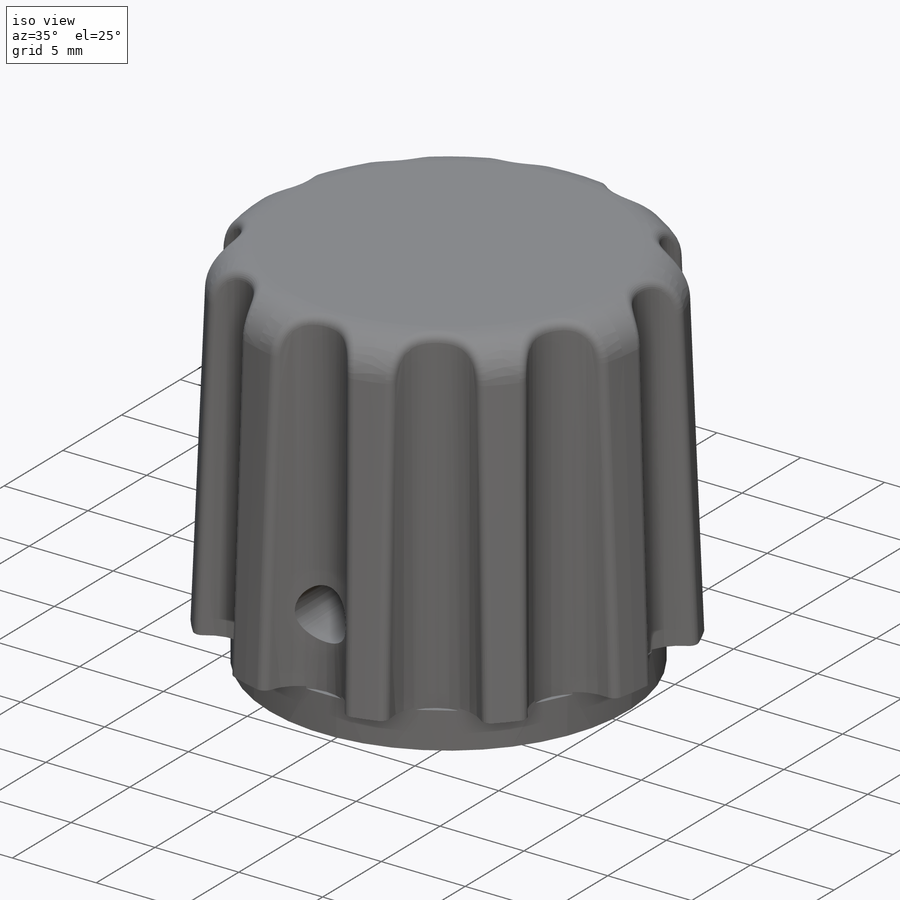
[diagram: iso view]
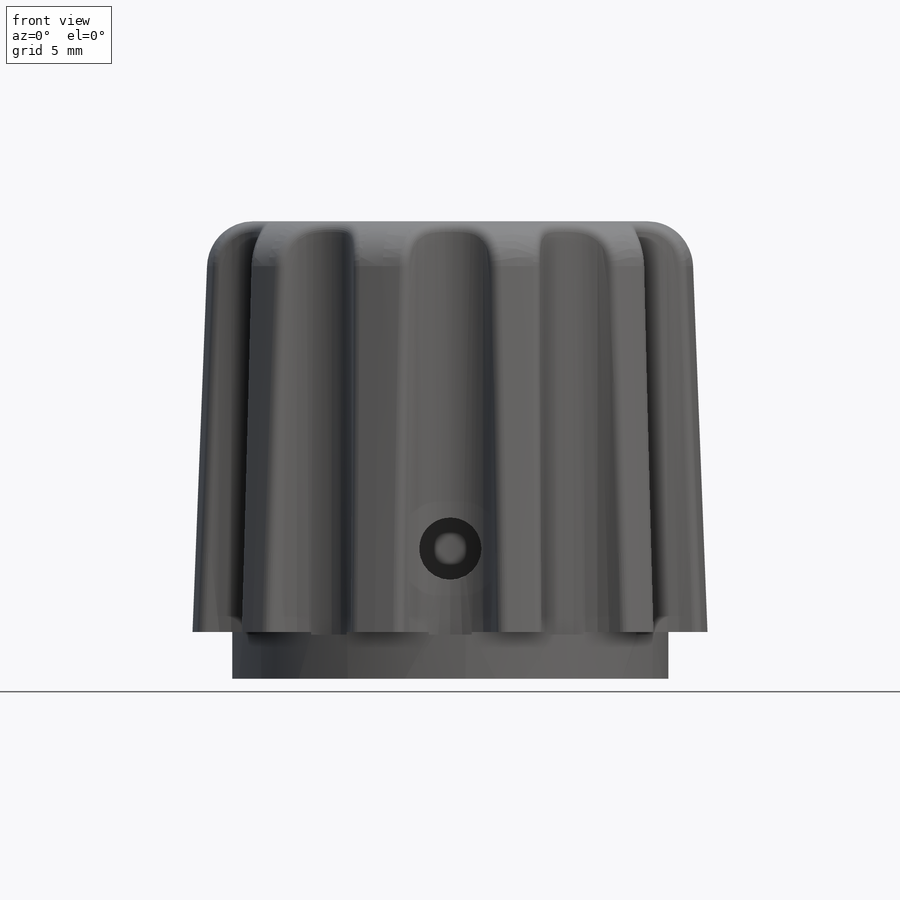
[diagram: front view]
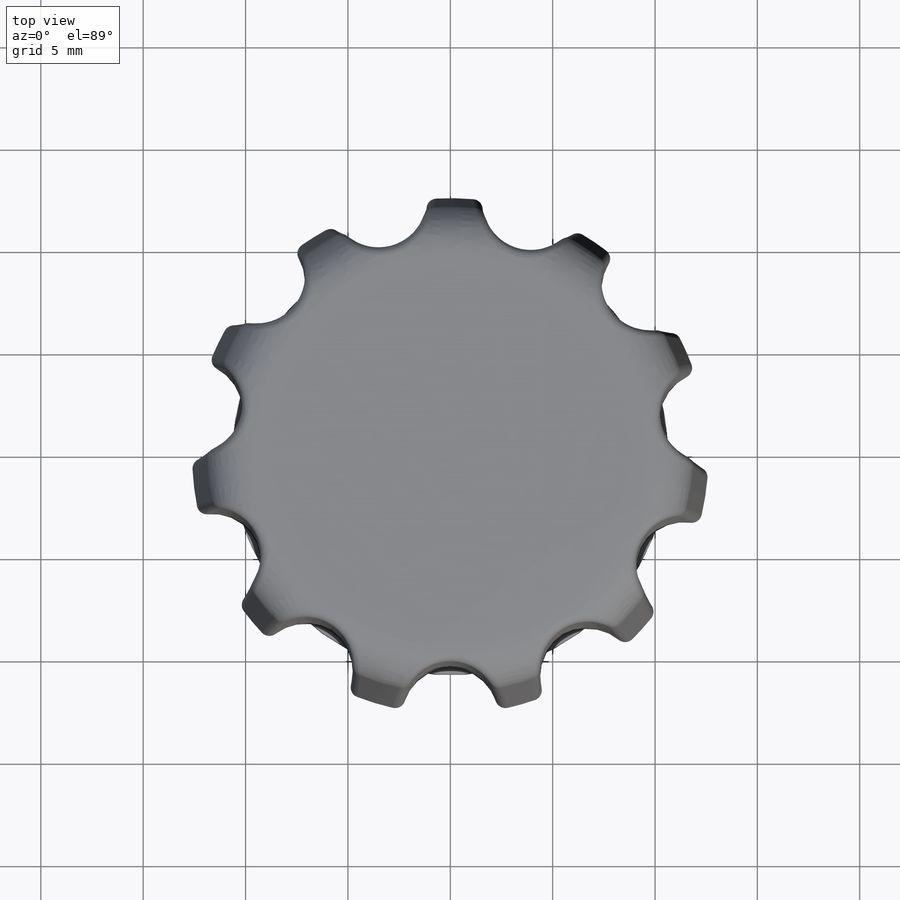
[diagram: top view]
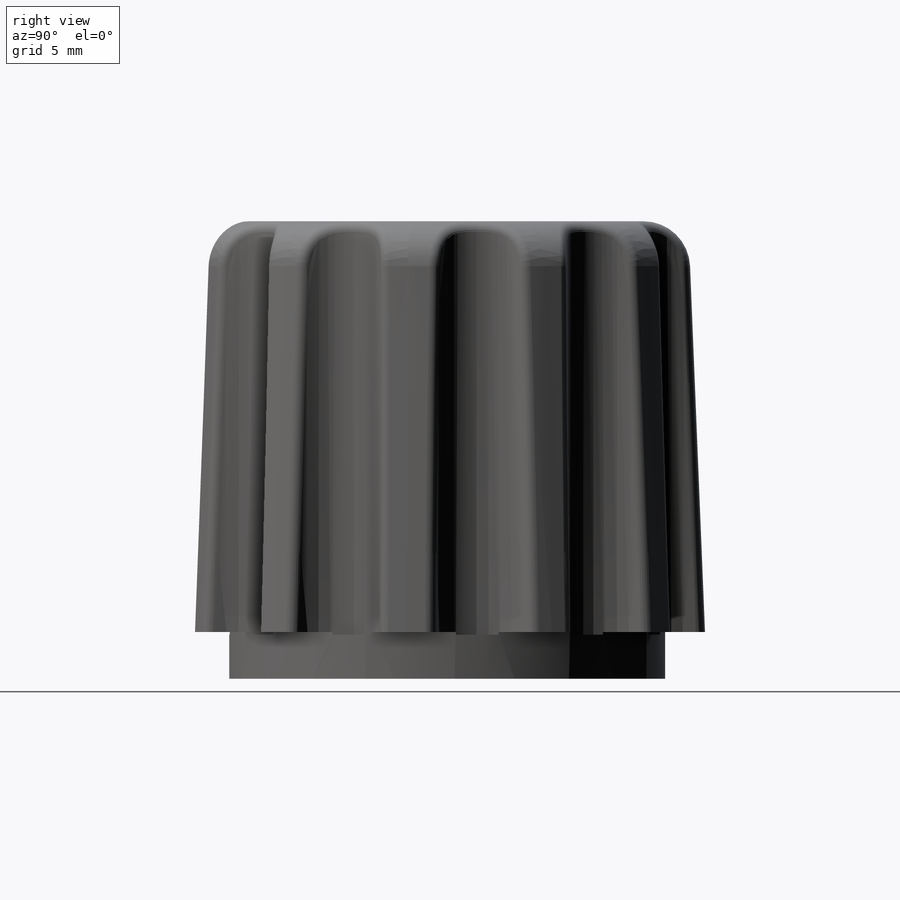
[diagram: right view]
SOLIDWORKS PART (.sldprt)
format: sldprt  version: not decoded by parser v0  size: 601,600 bytes
history: native  units: mm
features: sketch x6, plane x5, cut_extrude x5, pattern_circular x2, material x1, revolve x1, fillet x1 (+8 scaffold rows collapsed)
feature tree (29):
  scaffold x8  (default folders/planes/origin — collapsed)
  material  "Materiál <není určen>"
  plane  "Přední rovina"
  plane  "Horní rovina"
  plane  "Pravá rovina"
  sketch  "Skica4"  dims[c1.D1=12.7mm c1.D2=9.525mm c2.D2=87.7deg c2.D3=22.352mm]
  revolve  "Rotovat1"  Angle=360deg
  plane  "Rovina3"  Offset=2.16mm
  sketch  "Skica9"  dims[D2=2.34mm D1=0.0mm]
  cut_extrude  "Odebrat vysunutím8"  Depth=19.781252mm
  fillet  "Zaoblit5"  Radius=2.286mm
  pattern_circular  "Kruhové pole1"  Count=11 Angle=98deg
  sketch  "Skica10"
  cut_extrude  "Odebrat vysunutím9"  Depth=2.286mm
  sketch  "Skica11"  dims[D1=16.764mm]
  cut_extrude  "Odebrat vysunutím10"  [1 undecoded]
  sketch  "Skica12"  dims[D1=6.35mm D2=5.4864mm]
  cut_extrude  "Odebrat vysunutím11"  Depth=14.224mm
  plane  "Rovina4"  Offset=12.7mm
  sketch  "Skica13"  dims[D2=3.04mm D1=6.35mm]
  cut_extrude  "Odebrat vysunutím12"  [1 undecoded]
  pattern_circular  "Zaoblit6"  [2 undecoded]
decode coverage: 11 of 15 modeling features carry decoded parameters
note: 4 parameter values undecoded
note: suppression state not decoded; provenance and decode notes live in map.json
